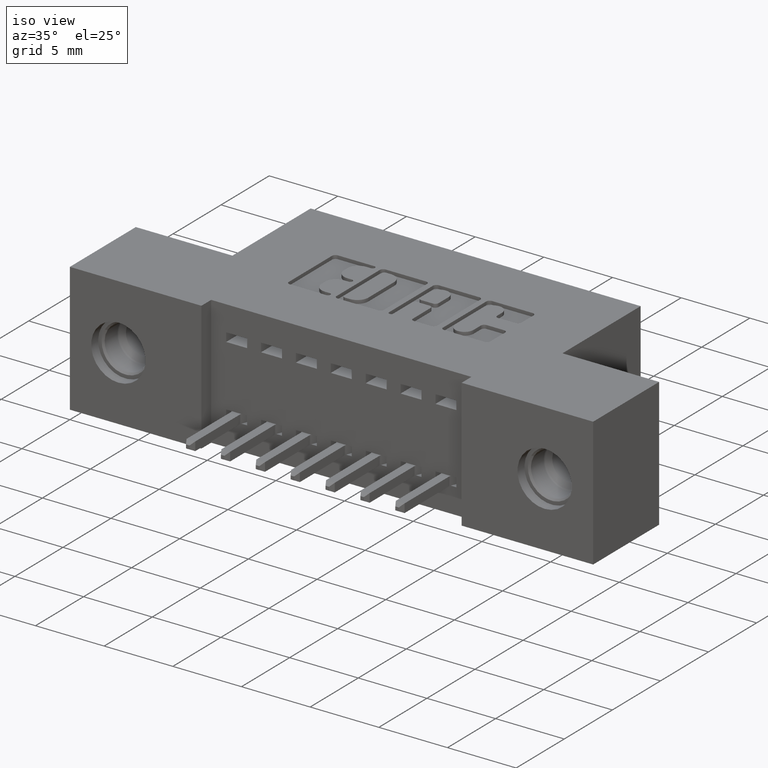
[diagram: clean part render]
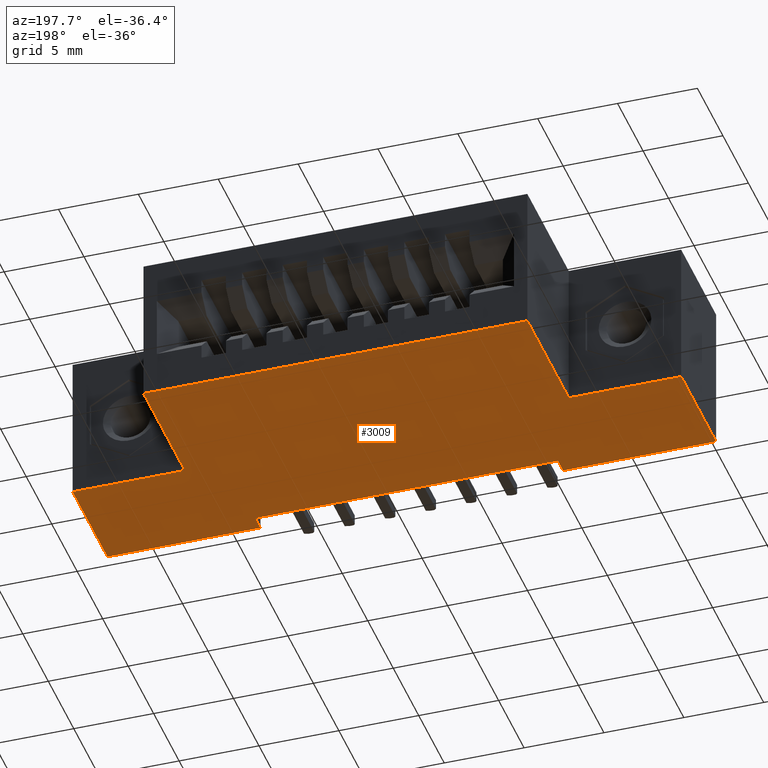
[diagram: tour spotlight — one face highlighted and labeled with its STEP entity id]
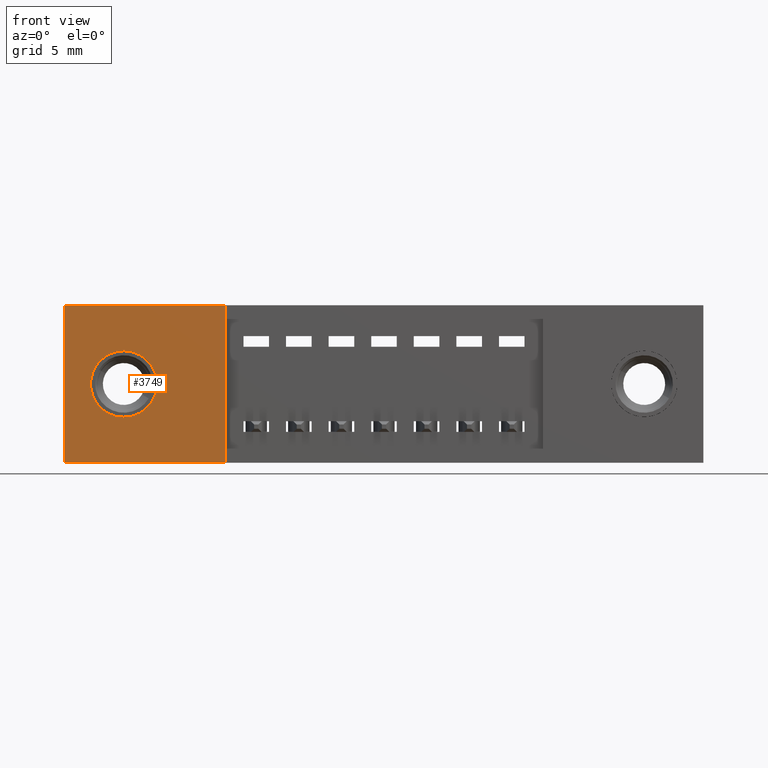
[diagram: tour spotlight — one face highlighted and labeled with its STEP entity id]
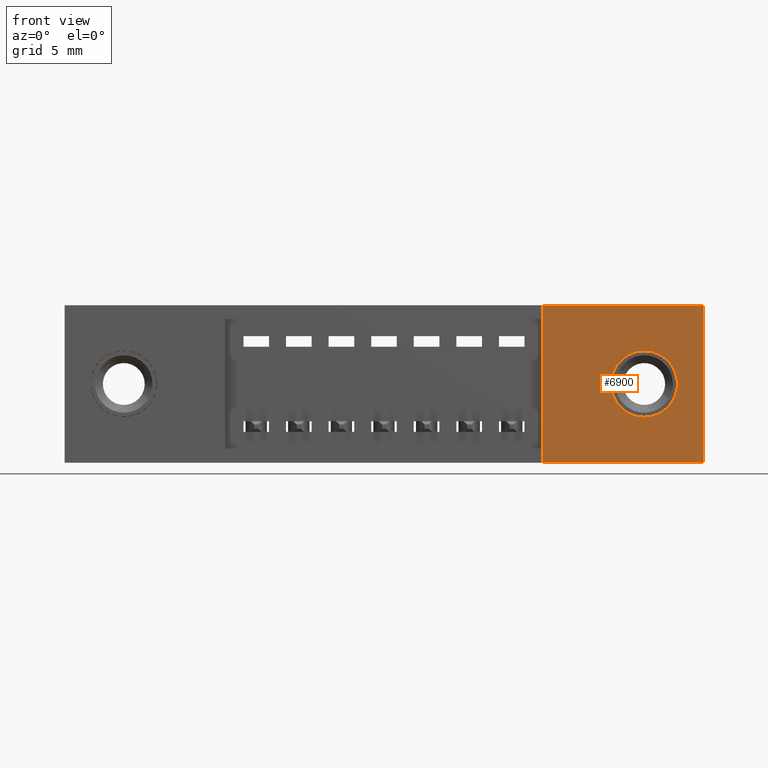
[diagram: tour spotlight — one face highlighted and labeled with its STEP entity id]
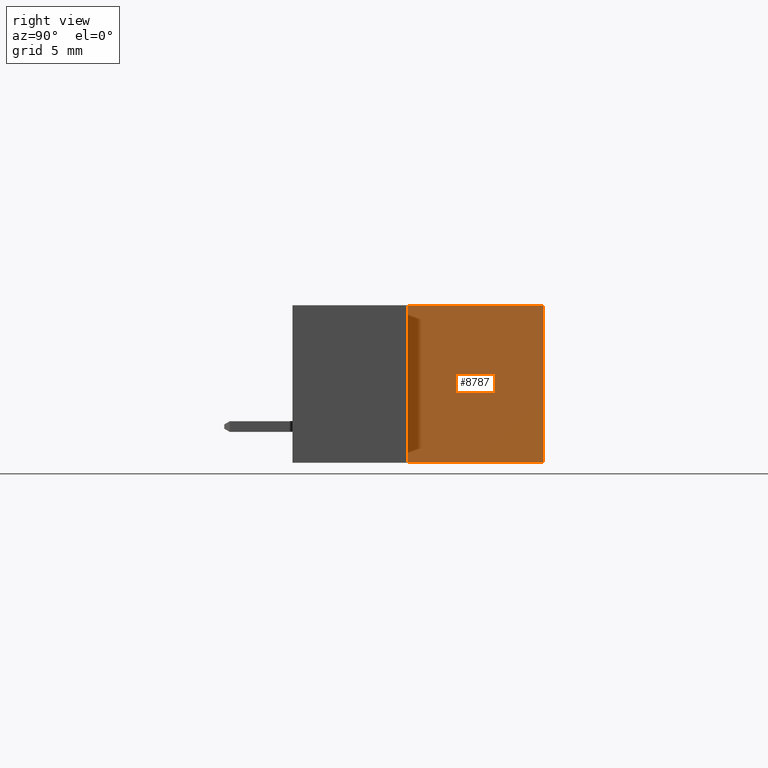
[diagram: tour spotlight — one face highlighted and labeled with its STEP entity id]
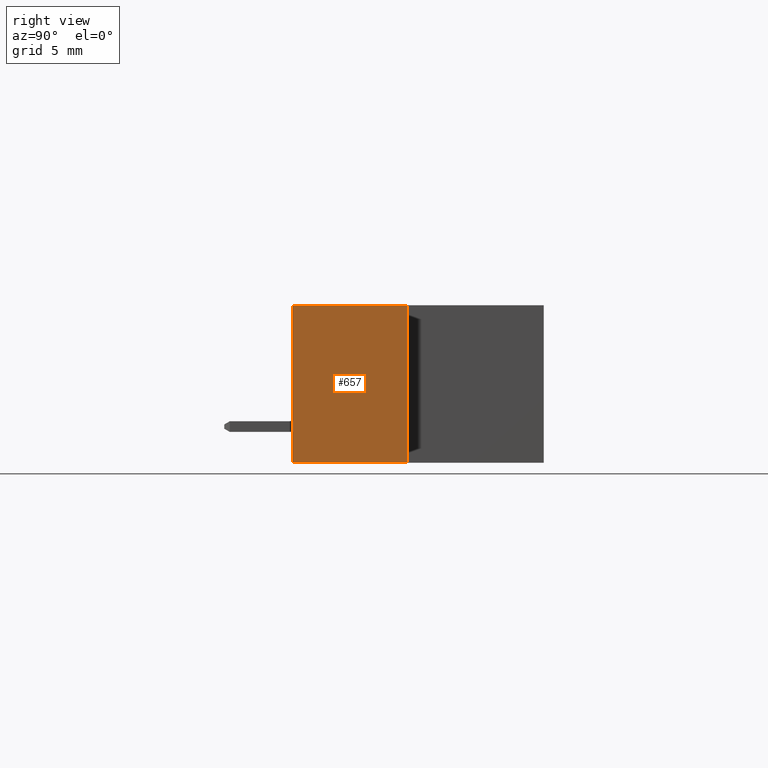
[diagram: tour spotlight — one face highlighted and labeled with its STEP entity id]
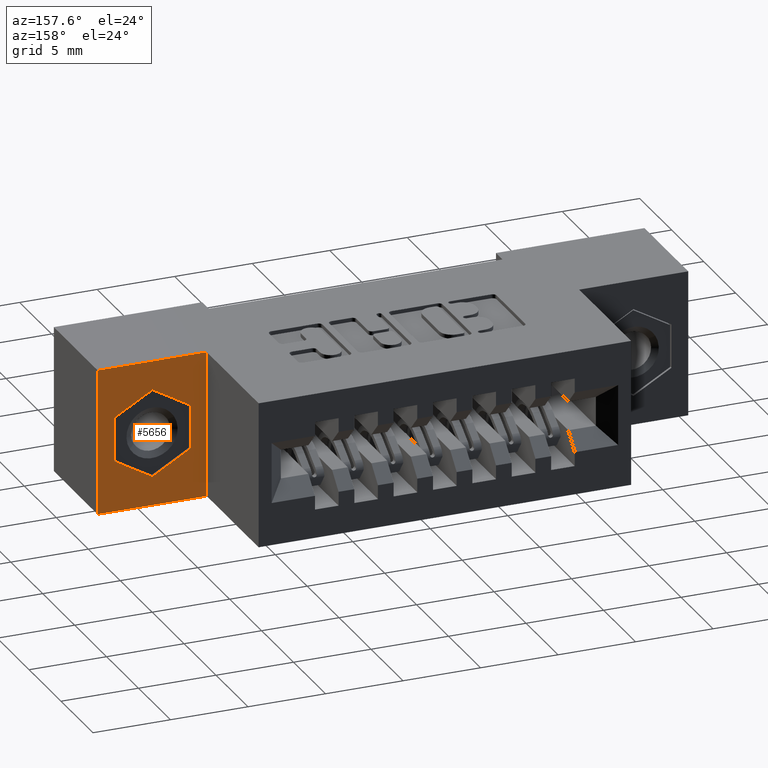
[diagram: tour spotlight — one face highlighted and labeled with its STEP entity id]
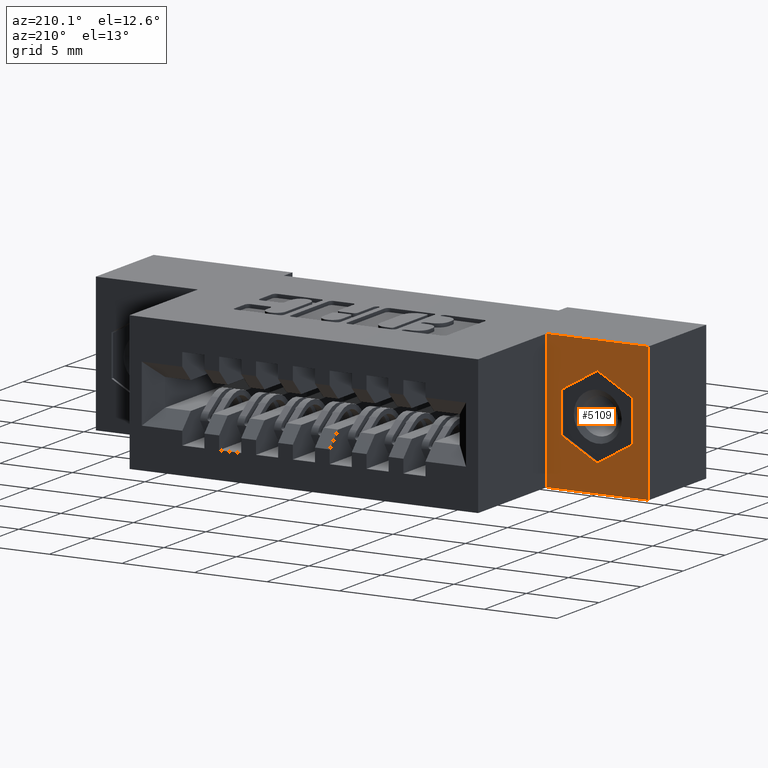
[diagram: tour spotlight — one face highlighted and labeled with its STEP entity id]
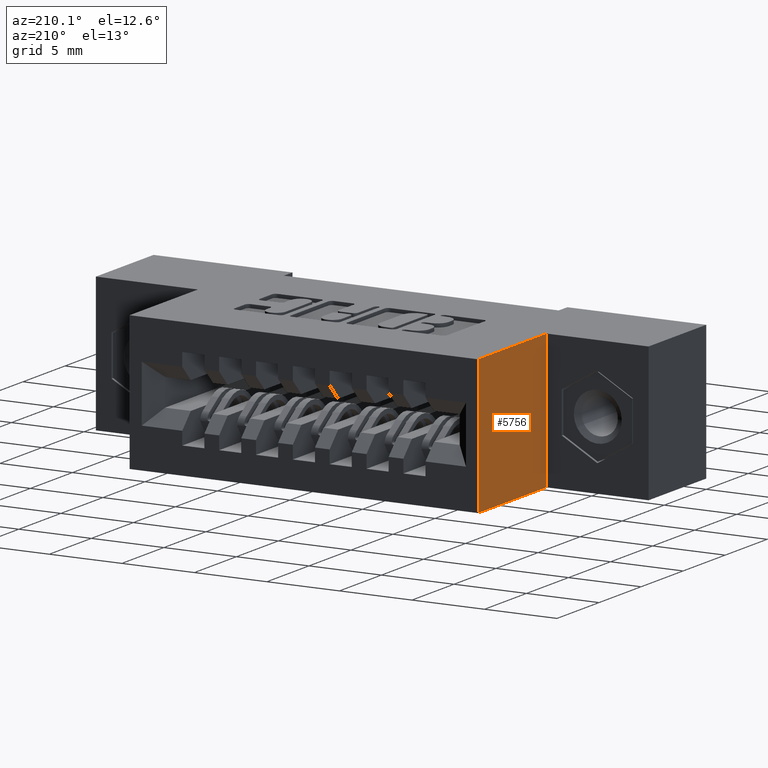
[diagram: tour spotlight — one face highlighted and labeled with its STEP entity id]
A machine part: a face-by-face anatomy tour. The part has 576 B-rep faces; the first image is the clean iso view, then the 8 largest visible faces are spotlighted one at a time (largest first), each with its STEP entity span.

Face 1 — auxiliary view, entity #3009. In plain terms, the highlighted planar face has unit normal (0, 0, 1).
Definition (entity closure, byte-faithful):
#44 = ORIENTED_EDGE ( 'NONE', *, *, #3836, .F. ) ;
#292 = CARTESIAN_POINT ( 'NONE',  ( 0.3770000000000000600, 0.04000000000000000100, -0.3700000000000000000 ) ) ;
#621 = CARTESIAN_POINT ( 'NONE',  ( 0.0000000000000000000, 0.5899999999999999700, -0.3700000000000000000 ) ) ;
#786 = VERTEX_POINT ( 'NONE', #2935 ) ;
#982 = DIRECTION ( 'NONE',  ( -0.0000000000000000000, -1.000000000000000000, -0.0000000000000000000 ) ) ;
#996 = EDGE_LOOP ( 'NONE', ( #4552, #3444, #4946, #8586, #7533, #2884, #8603, #7553, #44, #7005, #3616, #1050 ) ) ;
#1010 = CARTESIAN_POINT ( 'NONE',  ( 1.223000000000000100, 0.2699999999999999600, -0.3700000000000002200 ) ) ;
#1030 = VERTEX_POINT ( 'NONE', #7048 ) ;
#1050 = ORIENTED_EDGE ( 'NONE', *, *, #3458, .T. ) ;
#1169 = PLANE ( 'NONE',  #3211 ) ;
#1281 = EDGE_CURVE ( 'NONE', #1030, #786, #7740, .T. ) ;
#1424 = DIRECTION ( 'NONE',  ( -0.0000000000000000000, -1.000000000000000000, -0.0000000000000000000 ) ) ;
#1428 = VERTEX_POINT ( 'NONE', #2901 ) ;
#1514 = VERTEX_POINT ( 'NONE', #6163 ) ;
#1599 = EDGE_CURVE ( 'NONE', #5223, #1428, #5152, .T. ) ;
#1633 = EDGE_CURVE ( 'NONE', #9439, #9471, #6940, .T. ) ;
#1687 = VECTOR ( 'NONE', #3794, 39.37007874015748100 ) ;
#1828 = VERTEX_POINT ( 'NONE', #7994 ) ;
#1930 = DIRECTION ( 'NONE',  ( -1.000000000000000000, 0.0000000000000000000, -7.396700343856307300E-016 ) ) ;
#1933 = CARTESIAN_POINT ( 'NONE',  ( 0.0000000000000000000, 0.0000000000000000000, -0.3700000000000000000 ) ) ;
#1968 = CARTESIAN_POINT ( 'NONE',  ( 0.0000000000000000000, 0.5899999999999999700, -0.3700000000000000000 ) ) ;
#2275 = DIRECTION ( 'NONE',  ( -0.0000000000000000000, -1.000000000000000000, -0.0000000000000000000 ) ) ;
#2307 = CARTESIAN_POINT ( 'NONE',  ( 0.2770000000000000200, 0.2699999999999999600, -0.3700000000000000000 ) ) ;
#2440 = EDGE_CURVE ( 'NONE', #1514, #9285, #4019, .T. ) ;
#2580 = CARTESIAN_POINT ( 'NONE',  ( 1.500000000000000200, 0.5899999999999999700, -0.3700000000000000000 ) ) ;
#2856 = DIRECTION ( 'NONE',  ( -0.0000000000000000000, 1.000000000000000000, -0.0000000000000000000 ) ) ;
#2884 = ORIENTED_EDGE ( 'NONE', *, *, #1599, .F. ) ;
#2901 = CARTESIAN_POINT ( 'NONE',  ( 0.0000000000000000000, 0.0000000000000000000, -0.3700000000000000000 ) ) ;
#2935 = CARTESIAN_POINT ( 'NONE',  ( 1.123000000000000200, 0.04000000000000000100, -0.3700000000000000000 ) ) ;
#2964 = EDGE_CURVE ( 'NONE', #4211, #1828, #3759, .T. ) ;
#3009 = ADVANCED_FACE ( 'NONE', ( #5127 ), #1169, .F. ) ;
#3127 = CARTESIAN_POINT ( 'NONE',  ( 0.3770000000000000600, 0.0000000000000000000, -0.3700000000000000000 ) ) ;
#3157 = CARTESIAN_POINT ( 'NONE',  ( 0.2770000000000000200, 0.5899999999999999700, -0.3700000000000000000 ) ) ;
#3205 = LINE ( 'NONE', #8176, #3445 ) ;
#3211 = AXIS2_PLACEMENT_3D ( 'NONE', #1968, #3535, #8844 ) ;
#3325 = DIRECTION ( 'NONE',  ( -0.0000000000000000000, -1.000000000000000000, -0.0000000000000000000 ) ) ;
#3353 = VECTOR ( 'NONE', #7645, 39.37007874015748100 ) ;
#3444 = ORIENTED_EDGE ( 'NONE', *, *, #9867, .F. ) ;
#3445 = VECTOR ( 'NONE', #2856, 39.37007874015748100 ) ;
#3449 = CARTESIAN_POINT ( 'NONE',  ( 1.500000000000000200, 0.0000000000000000000, -0.3700000000000000000 ) ) ;
#3458 = EDGE_CURVE ( 'NONE', #9439, #4211, #7132, .T. ) ;
#3535 = DIRECTION ( 'NONE',  ( 0.0000000000000000000, 0.0000000000000000000, 1.000000000000000000 ) ) ;
#3616 = ORIENTED_EDGE ( 'NONE', *, *, #1633, .F. ) ;
#3759 = LINE ( 'NONE', #1933, #5597 ) ;
#3779 = DIRECTION ( 'NONE',  ( -1.000000000000000000, -0.0000000000000000000, -0.0000000000000000000 ) ) ;
#3794 = DIRECTION ( 'NONE',  ( -0.0000000000000000000, 1.000000000000000000, -0.0000000000000000000 ) ) ;
#3836 = EDGE_CURVE ( 'NONE', #7647, #9285, #5819, .T. ) ;
#4019 = LINE ( 'NONE', #2307, #1687 ) ;
#4056 = CARTESIAN_POINT ( 'NONE',  ( 0.3770000000000000600, 0.04000000000000000100, -0.3700000000000000000 ) ) ;
#4079 = EDGE_CURVE ( 'NONE', #1030, #5820, #5698, .T. ) ;
#4211 = VERTEX_POINT ( 'NONE', #3449 ) ;
#4399 = VECTOR ( 'NONE', #2275, 39.37007874015748100 ) ;
#4552 = ORIENTED_EDGE ( 'NONE', *, *, #2964, .T. ) ;
#4659 = VECTOR ( 'NONE', #1930, 39.37007874015748100 ) ;
#4920 = VECTOR ( 'NONE', #1424, 39.37007874015748100 ) ;
#4946 = ORIENTED_EDGE ( 'NONE', *, *, #1281, .F. ) ;
#5127 = FACE_OUTER_BOUND ( 'NONE', #996, .T. ) ;
#5152 = LINE ( 'NONE', #6260, #4920 ) ;
#5223 = VERTEX_POINT ( 'NONE', #9217 ) ;
#5582 = VECTOR ( 'NONE', #3779, 39.37007874015748100 ) ;
#5597 = VECTOR ( 'NONE', #6585, 39.37007874015748100 ) ;
#5698 = LINE ( 'NONE', #4056, #9184 ) ;
#5819 = LINE ( 'NONE', #621, #5582 ) ;
#5820 = VERTEX_POINT ( 'NONE', #3127 ) ;
#5982 = VECTOR ( 'NONE', #7839, 39.37007874015748100 ) ;
#6163 = CARTESIAN_POINT ( 'NONE',  ( 0.2770000000000000200, 0.2699999999999999600, -0.3700000000000000000 ) ) ;
#6184 = LINE ( 'NONE', #6924, #4399 ) ;
#6260 = CARTESIAN_POINT ( 'NONE',  ( 0.0000000000000000000, 0.5899999999999999700, -0.3700000000000000000 ) ) ;
#6330 = DIRECTION ( 'NONE',  ( -1.000000000000000000, -0.0000000000000000000, -0.0000000000000000000 ) ) ;
#6585 = DIRECTION ( 'NONE',  ( -1.000000000000000000, -0.0000000000000000000, -0.0000000000000000000 ) ) ;
#6917 = CARTESIAN_POINT ( 'NONE',  ( 0.0000000000000000000, 0.0000000000000000000, -0.3700000000000000000 ) ) ;
#6924 = CARTESIAN_POINT ( 'NONE',  ( 1.123000000000000200, 0.04000000000000000100, -0.3700000000000000000 ) ) ;
#6940 = LINE ( 'NONE', #7586, #4659 ) ;
#7005 = ORIENTED_EDGE ( 'NONE', *, *, #8353, .F. ) ;
#7048 = CARTESIAN_POINT ( 'NONE',  ( 0.3770000000000000600, 0.04000000000000000100, -0.3700000000000000000 ) ) ;
#7054 = VECTOR ( 'NONE', #6330, 39.37007874015748100 ) ;
#7132 = LINE ( 'NONE', #2580, #9085 ) ;
#7348 = EDGE_CURVE ( 'NONE', #5820, #1428, #9380, .T. ) ;
#7533 = ORIENTED_EDGE ( 'NONE', *, *, #7348, .T. ) ;
#7553 = ORIENTED_EDGE ( 'NONE', *, *, #2440, .T. ) ;
#7586 = CARTESIAN_POINT ( 'NONE',  ( 1.500000000000000200, 0.2699999999999999600, -0.3700000000000000000 ) ) ;
#7645 = DIRECTION ( 'NONE',  ( -1.000000000000000000, -0.0000000000000000000, -0.0000000000000000000 ) ) ;
#7647 = VERTEX_POINT ( 'NONE', #8810 ) ;
#7740 = LINE ( 'NONE', #292, #5982 ) ;
#7839 = DIRECTION ( 'NONE',  ( 1.000000000000000000, 0.0000000000000000000, 0.0000000000000000000 ) ) ;
#7994 = CARTESIAN_POINT ( 'NONE',  ( 1.123000000000000200, 0.0000000000000000000, -0.3700000000000000000 ) ) ;
#8176 = CARTESIAN_POINT ( 'NONE',  ( 1.223000000000000100, 0.2699999999999999600, -0.3700000000000002200 ) ) ;
#8353 = EDGE_CURVE ( 'NONE', #9471, #7647, #3205, .T. ) ;
#8586 = ORIENTED_EDGE ( 'NONE', *, *, #4079, .T. ) ;
#8603 = ORIENTED_EDGE ( 'NONE', *, *, #8716, .F. ) ;
#8674 = CARTESIAN_POINT ( 'NONE',  ( 1.500000000000000200, 0.2699999999999999600, -0.3700000000000000000 ) ) ;
#8716 = EDGE_CURVE ( 'NONE', #1514, #5223, #9002, .T. ) ;
#8810 = CARTESIAN_POINT ( 'NONE',  ( 1.222999999999999900, 0.5899999999999999700, -0.3700000000000000000 ) ) ;
#8844 = DIRECTION ( 'NONE',  ( 1.000000000000000000, 0.0000000000000000000, -0.0000000000000000000 ) ) ;
#9002 = LINE ( 'NONE', #9287, #7054 ) ;
#9085 = VECTOR ( 'NONE', #982, 39.37007874015748100 ) ;
#9184 = VECTOR ( 'NONE', #3325, 39.37007874015748100 ) ;
#9217 = CARTESIAN_POINT ( 'NONE',  ( -4.695363739110452100E-017, 0.2699999999999999600, -0.3700000000000000000 ) ) ;
#9285 = VERTEX_POINT ( 'NONE', #3157 ) ;
#9287 = CARTESIAN_POINT ( 'NONE',  ( -4.695363739110452100E-017, 0.2699999999999999600, -0.3700000000000000000 ) ) ;
#9380 = LINE ( 'NONE', #6917, #3353 ) ;
#9439 = VERTEX_POINT ( 'NONE', #8674 ) ;
#9471 = VERTEX_POINT ( 'NONE', #1010 ) ;
#9867 = EDGE_CURVE ( 'NONE', #786, #1828, #6184, .T. ) ;

Face 2 — front view, entity #3749. In plain terms, the highlighted planar face has unit normal (0, -1, 0).
Definition (entity closure, byte-faithful):
#499 = AXIS2_PLACEMENT_3D ( 'NONE', #1311, #3683, #8985 ) ;
#552 = FACE_OUTER_BOUND ( 'NONE', #3331, .T. ) ;
#680 = ORIENTED_EDGE ( 'NONE', *, *, #4852, .T. ) ;
#890 = EDGE_CURVE ( 'NONE', #6743, #4610, #7295, .T. ) ;
#963 = AXIS2_PLACEMENT_3D ( 'NONE', #6624, #1972, #7365 ) ;
#1311 = CARTESIAN_POINT ( 'NONE',  ( 0.0000000000000000000, 0.0000000000000000000, -0.3700000000000000000 ) ) ;
#1351 = CARTESIAN_POINT ( 'NONE',  ( 0.1390000000000000400, 0.0000000000000000000, -0.2630000000000000100 ) ) ;
#1428 = VERTEX_POINT ( 'NONE', #2901 ) ;
#1443 = LINE ( 'NONE', #6291, #1692 ) ;
#1531 = VECTOR ( 'NONE', #5951, 39.37007874015748100 ) ;
#1692 = VECTOR ( 'NONE', #4793, 39.37007874015748100 ) ;
#1737 = ORIENTED_EDGE ( 'NONE', *, *, #9342, .F. ) ;
#1951 = VERTEX_POINT ( 'NONE', #9583 ) ;
#1972 = DIRECTION ( 'NONE',  ( 0.0000000000000000000, 1.000000000000000000, 0.0000000000000000000 ) ) ;
#2028 = VERTEX_POINT ( 'NONE', #1351 ) ;
#2054 = ORIENTED_EDGE ( 'NONE', *, *, #9113, .T. ) ;
#2358 = AXIS2_PLACEMENT_3D ( 'NONE', #3684, #8987, #4494 ) ;
#2428 = ORIENTED_EDGE ( 'NONE', *, *, #4930, .F. ) ;
#2901 = CARTESIAN_POINT ( 'NONE',  ( 0.0000000000000000000, 0.0000000000000000000, -0.3700000000000000000 ) ) ;
#3016 = CIRCLE ( 'NONE', #963, 0.07800000000000001400 ) ;
#3127 = CARTESIAN_POINT ( 'NONE',  ( 0.3770000000000000600, 0.0000000000000000000, -0.3700000000000000000 ) ) ;
#3214 = VECTOR ( 'NONE', #5126, 39.37007874015748100 ) ;
#3331 = EDGE_LOOP ( 'NONE', ( #2428, #9210, #1737, #7914 ) ) ;
#3353 = VECTOR ( 'NONE', #7645, 39.37007874015748100 ) ;
#3507 = EDGE_LOOP ( 'NONE', ( #2054, #680 ) ) ;
#3618 = LINE ( 'NONE', #4409, #1531 ) ;
#3683 = DIRECTION ( 'NONE',  ( 0.0000000000000000000, -1.000000000000000000, 0.0000000000000000000 ) ) ;
#3684 = CARTESIAN_POINT ( 'NONE',  ( 0.1390000000000000100, 0.0000000000000000000, -0.1850000000000000000 ) ) ;
#3749 = ADVANCED_FACE ( 'NONE', ( #4501, #552 ), #5994, .T. ) ;
#4409 = CARTESIAN_POINT ( 'NONE',  ( 0.3770000000000000600, 0.0000000000000000000, -0.3700000000000000000 ) ) ;
#4494 = DIRECTION ( 'NONE',  ( 0.0000000000000000000, 0.0000000000000000000, 1.000000000000000000 ) ) ;
#4501 = FACE_BOUND ( 'NONE', #3507, .T. ) ;
#4509 = CARTESIAN_POINT ( 'NONE',  ( 0.0000000000000000000, 0.0000000000000000000, 0.0000000000000000000 ) ) ;
#4610 = VERTEX_POINT ( 'NONE', #4755 ) ;
#4755 = CARTESIAN_POINT ( 'NONE',  ( 0.3769999999999998900, 0.0000000000000000000, 0.0000000000000000000 ) ) ;
#4793 = DIRECTION ( 'NONE',  ( -0.0000000000000000000, -0.0000000000000000000, 1.000000000000000000 ) ) ;
#4852 = EDGE_CURVE ( 'NONE', #2028, #1951, #3016, .T. ) ;
#4930 = EDGE_CURVE ( 'NONE', #4610, #5820, #3618, .T. ) ;
#5126 = DIRECTION ( 'NONE',  ( 1.000000000000000000, 0.0000000000000000000, 0.0000000000000000000 ) ) ;
#5244 = CARTESIAN_POINT ( 'NONE',  ( 0.0000000000000000000, 0.0000000000000000000, 0.0000000000000000000 ) ) ;
#5489 = CIRCLE ( 'NONE', #2358, 0.07800000000000001400 ) ;
#5820 = VERTEX_POINT ( 'NONE', #3127 ) ;
#5951 = DIRECTION ( 'NONE',  ( -0.0000000000000000000, -0.0000000000000000000, -1.000000000000000000 ) ) ;
#5994 = PLANE ( 'NONE',  #499 ) ;
#6291 = CARTESIAN_POINT ( 'NONE',  ( 0.0000000000000000000, 0.0000000000000000000, 0.0000000000000000000 ) ) ;
#6624 = CARTESIAN_POINT ( 'NONE',  ( 0.1390000000000000100, 0.0000000000000000000, -0.1850000000000000000 ) ) ;
#6743 = VERTEX_POINT ( 'NONE', #5244 ) ;
#6917 = CARTESIAN_POINT ( 'NONE',  ( 0.0000000000000000000, 0.0000000000000000000, -0.3700000000000000000 ) ) ;
#7295 = LINE ( 'NONE', #4509, #3214 ) ;
#7348 = EDGE_CURVE ( 'NONE', #5820, #1428, #9380, .T. ) ;
#7365 = DIRECTION ( 'NONE',  ( 0.0000000000000000000, 0.0000000000000000000, 1.000000000000000000 ) ) ;
#7645 = DIRECTION ( 'NONE',  ( -1.000000000000000000, -0.0000000000000000000, -0.0000000000000000000 ) ) ;
#7914 = ORIENTED_EDGE ( 'NONE', *, *, #7348, .F. ) ;
#8985 = DIRECTION ( 'NONE',  ( 0.0000000000000000000, -0.0000000000000000000, -1.000000000000000000 ) ) ;
#8987 = DIRECTION ( 'NONE',  ( 0.0000000000000000000, 1.000000000000000000, 0.0000000000000000000 ) ) ;
#9113 = EDGE_CURVE ( 'NONE', #1951, #2028, #5489, .T. ) ;
#9210 = ORIENTED_EDGE ( 'NONE', *, *, #890, .F. ) ;
#9342 = EDGE_CURVE ( 'NONE', #1428, #6743, #1443, .T. ) ;
#9380 = LINE ( 'NONE', #6917, #3353 ) ;
#9583 = CARTESIAN_POINT ( 'NONE',  ( 0.1390000000000000100, 0.0000000000000000000, -0.1070000000000000000 ) ) ;

Face 3 — front view, entity #6900. In plain terms, the highlighted planar face has unit normal (0, -1, 0).
Definition (entity closure, byte-faithful):
#63 = VERTEX_POINT ( 'NONE', #9103 ) ;
#230 = CARTESIAN_POINT ( 'NONE',  ( 1.500000000000000200, 0.0000000000000000000, 0.0000000000000000000 ) ) ;
#565 = CARTESIAN_POINT ( 'NONE',  ( 1.123000000000000200, 0.0000000000000000000, -1.895600338963814900E-033 ) ) ;
#644 = LINE ( 'NONE', #3091, #2510 ) ;
#704 = DIRECTION ( 'NONE',  ( 0.0000000000000000000, -0.0000000000000000000, -1.000000000000000000 ) ) ;
#1363 = LINE ( 'NONE', #1897, #5536 ) ;
#1446 = EDGE_LOOP ( 'NONE', ( #2843, #2915 ) ) ;
#1733 = VERTEX_POINT ( 'NONE', #565 ) ;
#1828 = VERTEX_POINT ( 'NONE', #7994 ) ;
#1897 = CARTESIAN_POINT ( 'NONE',  ( 1.123000000000000200, 0.0000000000000000000, -0.3700000000000000000 ) ) ;
#1933 = CARTESIAN_POINT ( 'NONE',  ( 0.0000000000000000000, 0.0000000000000000000, -0.3700000000000000000 ) ) ;
#2110 = EDGE_CURVE ( 'NONE', #4924, #63, #2832, .T. ) ;
#2188 = ORIENTED_EDGE ( 'NONE', *, *, #5771, .F. ) ;
#2335 = ORIENTED_EDGE ( 'NONE', *, *, #5426, .F. ) ;
#2510 = VECTOR ( 'NONE', #3855, 39.37007874015748100 ) ;
#2600 = EDGE_CURVE ( 'NONE', #63, #4924, #6429, .T. ) ;
#2619 = ORIENTED_EDGE ( 'NONE', *, *, #2964, .F. ) ;
#2707 = DIRECTION ( 'NONE',  ( 0.0000000000000000000, 0.0000000000000000000, 1.000000000000000000 ) ) ;
#2760 = AXIS2_PLACEMENT_3D ( 'NONE', #2912, #8103, #7838 ) ;
#2766 = ORIENTED_EDGE ( 'NONE', *, *, #6528, .F. ) ;
#2832 = CIRCLE ( 'NONE', #2760, 0.07800000000000009700 ) ;
#2843 = ORIENTED_EDGE ( 'NONE', *, *, #2600, .T. ) ;
#2912 = CARTESIAN_POINT ( 'NONE',  ( 1.361000000000000000, 0.0000000000000000000, -0.1850000000000001400 ) ) ;
#2915 = ORIENTED_EDGE ( 'NONE', *, *, #2110, .T. ) ;
#2964 = EDGE_CURVE ( 'NONE', #4211, #1828, #3759, .T. ) ;
#3091 = CARTESIAN_POINT ( 'NONE',  ( 0.0000000000000000000, 0.0000000000000000000, 0.0000000000000000000 ) ) ;
#3378 = VECTOR ( 'NONE', #8003, 39.37007874015748100 ) ;
#3404 = AXIS2_PLACEMENT_3D ( 'NONE', #9094, #9011, #8996 ) ;
#3449 = CARTESIAN_POINT ( 'NONE',  ( 1.500000000000000200, 0.0000000000000000000, -0.3700000000000000000 ) ) ;
#3759 = LINE ( 'NONE', #1933, #5597 ) ;
#3855 = DIRECTION ( 'NONE',  ( 1.000000000000000000, 0.0000000000000000000, 0.0000000000000000000 ) ) ;
#4085 = FACE_BOUND ( 'NONE', #1446, .T. ) ;
#4211 = VERTEX_POINT ( 'NONE', #3449 ) ;
#4242 = VERTEX_POINT ( 'NONE', #9530 ) ;
#4633 = CARTESIAN_POINT ( 'NONE',  ( 0.0000000000000000000, 0.0000000000000000000, -0.3700000000000000000 ) ) ;
#4924 = VERTEX_POINT ( 'NONE', #9640 ) ;
#5403 = DIRECTION ( 'NONE',  ( 0.0000000000000000000, -1.000000000000000000, 0.0000000000000000000 ) ) ;
#5426 = EDGE_CURVE ( 'NONE', #4242, #4211, #5437, .T. ) ;
#5437 = LINE ( 'NONE', #230, #3378 ) ;
#5536 = VECTOR ( 'NONE', #2707, 39.37007874015748100 ) ;
#5597 = VECTOR ( 'NONE', #6585, 39.37007874015748100 ) ;
#5771 = EDGE_CURVE ( 'NONE', #1733, #4242, #644, .T. ) ;
#6429 = CIRCLE ( 'NONE', #3404, 0.07800000000000009700 ) ;
#6510 = AXIS2_PLACEMENT_3D ( 'NONE', #4633, #5403, #704 ) ;
#6528 = EDGE_CURVE ( 'NONE', #1828, #1733, #1363, .T. ) ;
#6585 = DIRECTION ( 'NONE',  ( -1.000000000000000000, -0.0000000000000000000, -0.0000000000000000000 ) ) ;
#6900 = ADVANCED_FACE ( 'NONE', ( #4085, #8354 ), #9126, .T. ) ;
#7545 = EDGE_LOOP ( 'NONE', ( #2766, #2619, #2335, #2188 ) ) ;
#7838 = DIRECTION ( 'NONE',  ( 0.0000000000000000000, 0.0000000000000000000, -1.000000000000000000 ) ) ;
#7994 = CARTESIAN_POINT ( 'NONE',  ( 1.123000000000000200, 0.0000000000000000000, -0.3700000000000000000 ) ) ;
#8003 = DIRECTION ( 'NONE',  ( 0.0000000000000000000, 0.0000000000000000000, -1.000000000000000000 ) ) ;
#8103 = DIRECTION ( 'NONE',  ( 0.0000000000000000000, 1.000000000000000000, -0.0000000000000000000 ) ) ;
#8354 = FACE_OUTER_BOUND ( 'NONE', #7545, .T. ) ;
#8996 = DIRECTION ( 'NONE',  ( 0.0000000000000000000, 0.0000000000000000000, -1.000000000000000000 ) ) ;
#9011 = DIRECTION ( 'NONE',  ( 0.0000000000000000000, 1.000000000000000000, -0.0000000000000000000 ) ) ;
#9094 = CARTESIAN_POINT ( 'NONE',  ( 1.361000000000000000, 0.0000000000000000000, -0.1850000000000001400 ) ) ;
#9103 = CARTESIAN_POINT ( 'NONE',  ( 1.361000000000000000, 0.0000000000000000000, -0.1070000000000000700 ) ) ;
#9126 = PLANE ( 'NONE',  #6510 ) ;
#9530 = CARTESIAN_POINT ( 'NONE',  ( 1.500000000000000200, 0.0000000000000000000, 0.0000000000000000000 ) ) ;
#9640 = CARTESIAN_POINT ( 'NONE',  ( 1.361000000000000000, 0.0000000000000000000, -0.2630000000000002300 ) ) ;

Face 4 — right view, entity #8787. In plain terms, the highlighted planar face has unit normal (-1, 0, 0).
Definition (entity closure, byte-faithful):
#536 = LINE ( 'NONE', #8605, #1039 ) ;
#723 = ORIENTED_EDGE ( 'NONE', *, *, #5743, .T. ) ;
#1010 = CARTESIAN_POINT ( 'NONE',  ( 1.223000000000000100, 0.2699999999999999600, -0.3700000000000002200 ) ) ;
#1039 = VECTOR ( 'NONE', #4050, 39.37007874015748100 ) ;
#1253 = CARTESIAN_POINT ( 'NONE',  ( 1.223000000000000100, 0.2699999999999999600, -1.328129453675304600E-016 ) ) ;
#2458 = FACE_OUTER_BOUND ( 'NONE', #4867, .T. ) ;
#2856 = DIRECTION ( 'NONE',  ( -0.0000000000000000000, 1.000000000000000000, -0.0000000000000000000 ) ) ;
#3205 = LINE ( 'NONE', #8176, #3445 ) ;
#3339 = CARTESIAN_POINT ( 'NONE',  ( 1.223000000000000100, 0.2699999999999999600, -0.3700000000000002200 ) ) ;
#3409 = ORIENTED_EDGE ( 'NONE', *, *, #4649, .F. ) ;
#3445 = VECTOR ( 'NONE', #2856, 39.37007874015748100 ) ;
#3603 = AXIS2_PLACEMENT_3D ( 'NONE', #3339, #8659, #4110 ) ;
#3783 = CARTESIAN_POINT ( 'NONE',  ( 1.223000000000000100, 0.5899999999999999700, -1.328129453675304600E-016 ) ) ;
#4050 = DIRECTION ( 'NONE',  ( 3.691686477924679000E-016, 0.0000000000000000000, 1.000000000000000000 ) ) ;
#4110 = DIRECTION ( 'NONE',  ( 3.691686477924679000E-016, 0.0000000000000000000, 1.000000000000000000 ) ) ;
#4649 = EDGE_CURVE ( 'NONE', #9471, #7462, #536, .T. ) ;
#4774 = CARTESIAN_POINT ( 'NONE',  ( 1.223000000000000100, 0.2699999999999999600, -1.328129453675304600E-016 ) ) ;
#4867 = EDGE_LOOP ( 'NONE', ( #723, #6087, #3409, #7061 ) ) ;
#5743 = EDGE_CURVE ( 'NONE', #7647, #7830, #7104, .T. ) ;
#6087 = ORIENTED_EDGE ( 'NONE', *, *, #7701, .F. ) ;
#6354 = VECTOR ( 'NONE', #6709, 39.37007874015748100 ) ;
#6606 = LINE ( 'NONE', #1253, #6354 ) ;
#6709 = DIRECTION ( 'NONE',  ( -0.0000000000000000000, 1.000000000000000000, -0.0000000000000000000 ) ) ;
#6907 = CARTESIAN_POINT ( 'NONE',  ( 1.223000000000000100, 0.5899999999999999700, -0.3700000000000002200 ) ) ;
#7061 = ORIENTED_EDGE ( 'NONE', *, *, #8353, .T. ) ;
#7104 = LINE ( 'NONE', #6907, #8607 ) ;
#7169 = PLANE ( 'NONE',  #3603 ) ;
#7462 = VERTEX_POINT ( 'NONE', #4774 ) ;
#7633 = DIRECTION ( 'NONE',  ( 3.691686477924679000E-016, 0.0000000000000000000, 1.000000000000000000 ) ) ;
#7647 = VERTEX_POINT ( 'NONE', #8810 ) ;
#7701 = EDGE_CURVE ( 'NONE', #7462, #7830, #6606, .T. ) ;
#7830 = VERTEX_POINT ( 'NONE', #3783 ) ;
#8176 = CARTESIAN_POINT ( 'NONE',  ( 1.223000000000000100, 0.2699999999999999600, -0.3700000000000002200 ) ) ;
#8353 = EDGE_CURVE ( 'NONE', #9471, #7647, #3205, .T. ) ;
#8605 = CARTESIAN_POINT ( 'NONE',  ( 1.223000000000000100, 0.2699999999999999600, -0.3700000000000002200 ) ) ;
#8607 = VECTOR ( 'NONE', #7633, 39.37007874015748100 ) ;
#8659 = DIRECTION ( 'NONE',  ( -1.000000000000000000, 0.0000000000000000000, 3.691686477924679000E-016 ) ) ;
#8787 = ADVANCED_FACE ( 'NONE', ( #2458 ), #7169, .F. ) ;
#8810 = CARTESIAN_POINT ( 'NONE',  ( 1.222999999999999900, 0.5899999999999999700, -0.3700000000000000000 ) ) ;
#9471 = VERTEX_POINT ( 'NONE', #1010 ) ;

Face 5 — right view, entity #657. In plain terms, the highlighted planar face has unit normal (-1, 0, 0).
Definition (entity closure, byte-faithful):
#230 = CARTESIAN_POINT ( 'NONE',  ( 1.500000000000000200, 0.0000000000000000000, 0.0000000000000000000 ) ) ;
#424 = CARTESIAN_POINT ( 'NONE',  ( 1.500000000000000200, 0.5899999999999999700, 0.0000000000000000000 ) ) ;
#657 = ADVANCED_FACE ( 'NONE', ( #1727 ), #4247, .F. ) ;
#904 = EDGE_CURVE ( 'NONE', #4338, #4242, #5276, .T. ) ;
#982 = DIRECTION ( 'NONE',  ( -0.0000000000000000000, -1.000000000000000000, -0.0000000000000000000 ) ) ;
#1098 = EDGE_CURVE ( 'NONE', #4338, #9439, #1469, .T. ) ;
#1469 = LINE ( 'NONE', #6409, #9360 ) ;
#1727 = FACE_OUTER_BOUND ( 'NONE', #3403, .T. ) ;
#2580 = CARTESIAN_POINT ( 'NONE',  ( 1.500000000000000200, 0.5899999999999999700, -0.3700000000000000000 ) ) ;
#3219 = ORIENTED_EDGE ( 'NONE', *, *, #5426, .T. ) ;
#3378 = VECTOR ( 'NONE', #8003, 39.37007874015748100 ) ;
#3403 = EDGE_LOOP ( 'NONE', ( #7964, #8880, #3219, #7648 ) ) ;
#3449 = CARTESIAN_POINT ( 'NONE',  ( 1.500000000000000200, 0.0000000000000000000, -0.3700000000000000000 ) ) ;
#3458 = EDGE_CURVE ( 'NONE', #9439, #4211, #7132, .T. ) ;
#4211 = VERTEX_POINT ( 'NONE', #3449 ) ;
#4242 = VERTEX_POINT ( 'NONE', #9530 ) ;
#4247 = PLANE ( 'NONE',  #7793 ) ;
#4338 = VERTEX_POINT ( 'NONE', #5130 ) ;
#5130 = CARTESIAN_POINT ( 'NONE',  ( 1.500000000000000200, 0.2699999999999999600, 0.0000000000000000000 ) ) ;
#5276 = LINE ( 'NONE', #424, #9019 ) ;
#5426 = EDGE_CURVE ( 'NONE', #4242, #4211, #5437, .T. ) ;
#5437 = LINE ( 'NONE', #230, #3378 ) ;
#6047 = DIRECTION ( 'NONE',  ( 0.0000000000000000000, 0.0000000000000000000, 1.000000000000000000 ) ) ;
#6409 = CARTESIAN_POINT ( 'NONE',  ( 1.500000000000000200, 0.2699999999999999600, -0.3700000000000000000 ) ) ;
#7132 = LINE ( 'NONE', #2580, #9085 ) ;
#7648 = ORIENTED_EDGE ( 'NONE', *, *, #3458, .F. ) ;
#7793 = AXIS2_PLACEMENT_3D ( 'NONE', #8536, #9281, #6047 ) ;
#7964 = ORIENTED_EDGE ( 'NONE', *, *, #1098, .F. ) ;
#8003 = DIRECTION ( 'NONE',  ( 0.0000000000000000000, 0.0000000000000000000, -1.000000000000000000 ) ) ;
#8536 = CARTESIAN_POINT ( 'NONE',  ( 1.500000000000000200, 0.5899999999999999700, 0.0000000000000000000 ) ) ;
#8669 = DIRECTION ( 'NONE',  ( -0.0000000000000000000, -1.000000000000000000, -0.0000000000000000000 ) ) ;
#8674 = CARTESIAN_POINT ( 'NONE',  ( 1.500000000000000200, 0.2699999999999999600, -0.3700000000000000000 ) ) ;
#8880 = ORIENTED_EDGE ( 'NONE', *, *, #904, .T. ) ;
#9019 = VECTOR ( 'NONE', #8669, 39.37007874015748100 ) ;
#9085 = VECTOR ( 'NONE', #982, 39.37007874015748100 ) ;
#9233 = DIRECTION ( 'NONE',  ( -0.0000000000000000000, -0.0000000000000000000, -1.000000000000000000 ) ) ;
#9281 = DIRECTION ( 'NONE',  ( -1.000000000000000000, 0.0000000000000000000, 0.0000000000000000000 ) ) ;
#9360 = VECTOR ( 'NONE', #9233, 39.37007874015748100 ) ;
#9439 = VERTEX_POINT ( 'NONE', #8674 ) ;
#9530 = CARTESIAN_POINT ( 'NONE',  ( 1.500000000000000200, 0.0000000000000000000, 0.0000000000000000000 ) ) ;

Face 6 — auxiliary view, entity #5656. In plain terms, the highlighted planar face has unit normal (0, 1, 0).
Definition (entity closure, byte-faithful):
#9 = VECTOR ( 'NONE', #4256, 39.37007874015748900 ) ;
#39 = CARTESIAN_POINT ( 'NONE',  ( 1.361000000000000000, 0.2699999999999999600, -0.2964286019535978800 ) ) ;
#67 = EDGE_CURVE ( 'NONE', #5917, #1999, #4185, .T. ) ;
#182 = CARTESIAN_POINT ( 'NONE',  ( 1.264499999999999500, 0.2699999999999999600, -0.1292856990232012800 ) ) ;
#306 = ORIENTED_EDGE ( 'NONE', *, *, #1833, .T. ) ;
#389 = DIRECTION ( 'NONE',  ( 0.8660254037844384900, -0.0000000000000000000, -0.5000000000000001100 ) ) ;
#536 = LINE ( 'NONE', #8605, #1039 ) ;
#537 = ORIENTED_EDGE ( 'NONE', *, *, #4649, .T. ) ;
#1010 = CARTESIAN_POINT ( 'NONE',  ( 1.223000000000000100, 0.2699999999999999600, -0.3700000000000002200 ) ) ;
#1039 = VECTOR ( 'NONE', #4050, 39.37007874015748100 ) ;
#1098 = EDGE_CURVE ( 'NONE', #4338, #9439, #1469, .T. ) ;
#1148 = ORIENTED_EDGE ( 'NONE', *, *, #4099, .F. ) ;
#1177 = EDGE_CURVE ( 'NONE', #7630, #5917, #8903, .T. ) ;
#1240 = ORIENTED_EDGE ( 'NONE', *, *, #1177, .F. ) ;
#1279 = VECTOR ( 'NONE', #4899, 39.37007874015748100 ) ;
#1326 = LINE ( 'NONE', #4823, #9229 ) ;
#1469 = LINE ( 'NONE', #6409, #9360 ) ;
#1600 = VERTEX_POINT ( 'NONE', #182 ) ;
#1633 = EDGE_CURVE ( 'NONE', #9439, #9471, #6940, .T. ) ;
#1833 = EDGE_CURVE ( 'NONE', #7462, #4338, #2954, .T. ) ;
#1856 = EDGE_LOOP ( 'NONE', ( #3877, #3876, #7304, #1240, #4523, #1148 ) ) ;
#1930 = DIRECTION ( 'NONE',  ( -1.000000000000000000, 0.0000000000000000000, -7.396700343856307300E-016 ) ) ;
#1999 = VERTEX_POINT ( 'NONE', #39 ) ;
#2538 = VERTEX_POINT ( 'NONE', #9513 ) ;
#2735 = CARTESIAN_POINT ( 'NONE',  ( 1.457500000000000000, 0.2699999999999999600, -0.1292856990232013100 ) ) ;
#2806 = EDGE_CURVE ( 'NONE', #1999, #2538, #7483, .T. ) ;
#2889 = ORIENTED_EDGE ( 'NONE', *, *, #1633, .T. ) ;
#2954 = LINE ( 'NONE', #7543, #6816 ) ;
#2998 = DIRECTION ( 'NONE',  ( -0.8660254037844398200, -0.0000000000000000000, 0.4999999999999979500 ) ) ;
#3174 = CARTESIAN_POINT ( 'NONE',  ( 1.264499999999999500, 0.2699999999999999600, -0.2407143009767990200 ) ) ;
#3196 = DIRECTION ( 'NONE',  ( -0.0000000000000000000, -0.0000000000000000000, 1.000000000000000000 ) ) ;
#3385 = LINE ( 'NONE', #9370, #1279 ) ;
#3876 = ORIENTED_EDGE ( 'NONE', *, *, #2806, .F. ) ;
#3877 = ORIENTED_EDGE ( 'NONE', *, *, #8680, .F. ) ;
#3924 = VECTOR ( 'NONE', #389, 39.37007874015748900 ) ;
#3939 = DIRECTION ( 'NONE',  ( -0.0000000000000000000, -0.0000000000000000000, -1.000000000000000000 ) ) ;
#4050 = DIRECTION ( 'NONE',  ( 3.691686477924679000E-016, 0.0000000000000000000, 1.000000000000000000 ) ) ;
#4065 = AXIS2_PLACEMENT_3D ( 'NONE', #7541, #4526, #9745 ) ;
#4099 = EDGE_CURVE ( 'NONE', #1600, #7969, #3385, .T. ) ;
#4171 = ORIENTED_EDGE ( 'NONE', *, *, #1098, .T. ) ;
#4185 = LINE ( 'NONE', #8643, #9 ) ;
#4256 = DIRECTION ( 'NONE',  ( -0.8660254037844386000, -0.0000000000000000000, -0.5000000000000000000 ) ) ;
#4318 = CARTESIAN_POINT ( 'NONE',  ( 1.457500000000000000, 0.2699999999999999600, -0.1292856990232013100 ) ) ;
#4338 = VERTEX_POINT ( 'NONE', #5130 ) ;
#4523 = ORIENTED_EDGE ( 'NONE', *, *, #8268, .F. ) ;
#4526 = DIRECTION ( 'NONE',  ( 0.0000000000000000000, 1.000000000000000000, -0.0000000000000000000 ) ) ;
#4649 = EDGE_CURVE ( 'NONE', #9471, #7462, #536, .T. ) ;
#4659 = VECTOR ( 'NONE', #1930, 39.37007874015748100 ) ;
#4774 = CARTESIAN_POINT ( 'NONE',  ( 1.223000000000000100, 0.2699999999999999600, -1.328129453675304600E-016 ) ) ;
#4823 = CARTESIAN_POINT ( 'NONE',  ( 1.264499999999999500, 0.2699999999999999600, -0.1292856990232012800 ) ) ;
#4899 = DIRECTION ( 'NONE',  ( 0.8660254037844398200, -0.0000000000000000000, 0.4999999999999977200 ) ) ;
#4929 = VECTOR ( 'NONE', #3939, 39.37007874015748100 ) ;
#4970 = CARTESIAN_POINT ( 'NONE',  ( 1.457500000000000000, 0.2699999999999999600, -0.2407143009767990200 ) ) ;
#5130 = CARTESIAN_POINT ( 'NONE',  ( 1.500000000000000200, 0.2699999999999999600, 0.0000000000000000000 ) ) ;
#5559 = FACE_OUTER_BOUND ( 'NONE', #9870, .T. ) ;
#5656 = ADVANCED_FACE ( 'NONE', ( #9282, #5559 ), #6809, .T. ) ;
#5674 = DIRECTION ( 'NONE',  ( 1.000000000000000000, -0.0000000000000000000, 4.794691168502906500E-016 ) ) ;
#5917 = VERTEX_POINT ( 'NONE', #4970 ) ;
#6409 = CARTESIAN_POINT ( 'NONE',  ( 1.500000000000000200, 0.2699999999999999600, -0.3700000000000000000 ) ) ;
#6809 = PLANE ( 'NONE',  #4065 ) ;
#6816 = VECTOR ( 'NONE', #5674, 39.37007874015748100 ) ;
#6940 = LINE ( 'NONE', #7586, #4659 ) ;
#7063 = CARTESIAN_POINT ( 'NONE',  ( 1.361000000000000000, 0.2699999999999999600, -0.07357139804640243400 ) ) ;
#7304 = ORIENTED_EDGE ( 'NONE', *, *, #67, .F. ) ;
#7462 = VERTEX_POINT ( 'NONE', #4774 ) ;
#7483 = LINE ( 'NONE', #3174, #8763 ) ;
#7541 = CARTESIAN_POINT ( 'NONE',  ( 1.223000000000000100, 0.2699999999999999600, -0.3700000000000002200 ) ) ;
#7543 = CARTESIAN_POINT ( 'NONE',  ( 1.500000000000000200, 0.2699999999999999600, 0.0000000000000000000 ) ) ;
#7563 = CARTESIAN_POINT ( 'NONE',  ( 1.457500000000000000, 0.2699999999999999600, -0.2407143009767990200 ) ) ;
#7586 = CARTESIAN_POINT ( 'NONE',  ( 1.500000000000000200, 0.2699999999999999600, -0.3700000000000000000 ) ) ;
#7630 = VERTEX_POINT ( 'NONE', #2735 ) ;
#7969 = VERTEX_POINT ( 'NONE', #7063 ) ;
#8268 = EDGE_CURVE ( 'NONE', #7969, #7630, #8685, .T. ) ;
#8605 = CARTESIAN_POINT ( 'NONE',  ( 1.223000000000000100, 0.2699999999999999600, -0.3700000000000002200 ) ) ;
#8643 = CARTESIAN_POINT ( 'NONE',  ( 1.361000000000000000, 0.2699999999999999600, -0.2964286019535978800 ) ) ;
#8674 = CARTESIAN_POINT ( 'NONE',  ( 1.500000000000000200, 0.2699999999999999600, -0.3700000000000000000 ) ) ;
#8680 = EDGE_CURVE ( 'NONE', #2538, #1600, #1326, .T. ) ;
#8685 = LINE ( 'NONE', #4318, #3924 ) ;
#8763 = VECTOR ( 'NONE', #2998, 39.37007874015748100 ) ;
#8903 = LINE ( 'NONE', #7563, #4929 ) ;
#9229 = VECTOR ( 'NONE', #3196, 39.37007874015748100 ) ;
#9233 = DIRECTION ( 'NONE',  ( -0.0000000000000000000, -0.0000000000000000000, -1.000000000000000000 ) ) ;
#9282 = FACE_BOUND ( 'NONE', #1856, .T. ) ;
#9360 = VECTOR ( 'NONE', #9233, 39.37007874015748100 ) ;
#9370 = CARTESIAN_POINT ( 'NONE',  ( 1.361000000000000000, 0.2699999999999999600, -0.07357139804640243400 ) ) ;
#9439 = VERTEX_POINT ( 'NONE', #8674 ) ;
#9471 = VERTEX_POINT ( 'NONE', #1010 ) ;
#9513 = CARTESIAN_POINT ( 'NONE',  ( 1.264499999999999500, 0.2699999999999999600, -0.2407143009767990200 ) ) ;
#9745 = DIRECTION ( 'NONE',  ( 0.0000000000000000000, 0.0000000000000000000, 1.000000000000000000 ) ) ;
#9870 = EDGE_LOOP ( 'NONE', ( #2889, #537, #306, #4171 ) ) ;

Face 7 — auxiliary view, entity #5109. In plain terms, the highlighted planar face has unit normal (0, 1, 0).
Definition (entity closure, byte-faithful):
#7 = LINE ( 'NONE', #8826, #2102 ) ;
#57 = DIRECTION ( 'NONE',  ( -0.0000000000000000000, -0.0000000000000000000, -1.000000000000000000 ) ) ;
#188 = CARTESIAN_POINT ( 'NONE',  ( 0.2355000000000000400, 0.2699999999999999600, -0.1292856990232011900 ) ) ;
#392 = ORIENTED_EDGE ( 'NONE', *, *, #7965, .T. ) ;
#454 = CARTESIAN_POINT ( 'NONE',  ( 0.04250000000000004500, 0.2699999999999999600, -0.2407143009767988800 ) ) ;
#539 = FACE_BOUND ( 'NONE', #1752, .T. ) ;
#608 = VECTOR ( 'NONE', #57, 39.37007874015748100 ) ;
#639 = CARTESIAN_POINT ( 'NONE',  ( -2.134256245050197900E-018, 0.2699999999999999600, -4.642881775149349100E-049 ) ) ;
#973 = DIRECTION ( 'NONE',  ( 0.0000000000000000000, 0.0000000000000000000, -1.000000000000000000 ) ) ;
#1064 = CARTESIAN_POINT ( 'NONE',  ( -4.695363739110452100E-017, 0.2699999999999999600, -0.3700000000000000000 ) ) ;
#1258 = ORIENTED_EDGE ( 'NONE', *, *, #3350, .T. ) ;
#1320 = VERTEX_POINT ( 'NONE', #2300 ) ;
#1471 = VECTOR ( 'NONE', #973, 39.37007874015748100 ) ;
#1514 = VERTEX_POINT ( 'NONE', #6163 ) ;
#1588 = ORIENTED_EDGE ( 'NONE', *, *, #6080, .F. ) ;
#1752 = EDGE_LOOP ( 'NONE', ( #1588, #5872, #3529, #3696, #3812, #6113 ) ) ;
#1831 = AXIS2_PLACEMENT_3D ( 'NONE', #639, #9097, #4607 ) ;
#1846 = LINE ( 'NONE', #2791, #7746 ) ;
#1938 = VERTEX_POINT ( 'NONE', #8905 ) ;
#1959 = CARTESIAN_POINT ( 'NONE',  ( 0.2770000000000000200, 0.2699999999999999600, -1.696135816819084800E-017 ) ) ;
#1981 = DIRECTION ( 'NONE',  ( 0.8660254037844386000, 0.0000000000000000000, 0.5000000000000000000 ) ) ;
#2102 = VECTOR ( 'NONE', #5826, 39.37007874015748900 ) ;
#2154 = FACE_OUTER_BOUND ( 'NONE', #7484, .T. ) ;
#2281 = VERTEX_POINT ( 'NONE', #2996 ) ;
#2300 = CARTESIAN_POINT ( 'NONE',  ( 0.04250000000000004500, 0.2699999999999999600, -0.2407143009767988800 ) ) ;
#2522 = LINE ( 'NONE', #1064, #9407 ) ;
#2729 = VECTOR ( 'NONE', #5958, 39.37007874015748900 ) ;
#2791 = CARTESIAN_POINT ( 'NONE',  ( 0.04250000000000004500, 0.2699999999999999600, -0.1292856990232011400 ) ) ;
#2996 = CARTESIAN_POINT ( 'NONE',  ( 0.1390000000000000100, 0.2699999999999999600, -0.07357139804640223900 ) ) ;
#3234 = DIRECTION ( 'NONE',  ( 1.000000000000000000, 0.0000000000000000000, -6.123233995736768500E-017 ) ) ;
#3350 = EDGE_CURVE ( 'NONE', #9556, #5496, #7814, .T. ) ;
#3529 = ORIENTED_EDGE ( 'NONE', *, *, #8405, .F. ) ;
#3696 = ORIENTED_EDGE ( 'NONE', *, *, #8281, .F. ) ;
#3782 = VERTEX_POINT ( 'NONE', #6775 ) ;
#3810 = VERTEX_POINT ( 'NONE', #9055 ) ;
#3812 = ORIENTED_EDGE ( 'NONE', *, *, #9668, .F. ) ;
#4453 = CARTESIAN_POINT ( 'NONE',  ( 0.1390000000000000100, 0.2699999999999999600, -0.07357139804640223900 ) ) ;
#4607 = DIRECTION ( 'NONE',  ( 0.0000000000000000000, -0.0000000000000000000, 1.000000000000000000 ) ) ;
#4764 = CARTESIAN_POINT ( 'NONE',  ( 0.2770000000000000200, 0.2699999999999999600, -0.3700000000000000000 ) ) ;
#4829 = VERTEX_POINT ( 'NONE', #8048 ) ;
#5109 = ADVANCED_FACE ( 'NONE', ( #539, #2154 ), #8362, .T. ) ;
#5162 = DIRECTION ( 'NONE',  ( 0.0000000000000000000, 0.0000000000000000000, 1.000000000000000000 ) ) ;
#5223 = VERTEX_POINT ( 'NONE', #9217 ) ;
#5410 = EDGE_CURVE ( 'NONE', #5223, #9556, #2522, .T. ) ;
#5496 = VERTEX_POINT ( 'NONE', #1959 ) ;
#5538 = CARTESIAN_POINT ( 'NONE',  ( -2.134256245050205600E-018, 0.2699999999999999600, 0.0000000000000000000 ) ) ;
#5826 = DIRECTION ( 'NONE',  ( -0.8660254037844386000, 0.0000000000000000000, 0.5000000000000001100 ) ) ;
#5827 = VECTOR ( 'NONE', #3234, 39.37007874015748100 ) ;
#5872 = ORIENTED_EDGE ( 'NONE', *, *, #8089, .F. ) ;
#5958 = DIRECTION ( 'NONE',  ( 0.8660254037844384900, 0.0000000000000000000, -0.5000000000000003300 ) ) ;
#6080 = EDGE_CURVE ( 'NONE', #3782, #3810, #9717, .T. ) ;
#6113 = ORIENTED_EDGE ( 'NONE', *, *, #8259, .F. ) ;
#6163 = CARTESIAN_POINT ( 'NONE',  ( 0.2770000000000000200, 0.2699999999999999600, -0.3700000000000000000 ) ) ;
#6308 = VECTOR ( 'NONE', #5162, 39.37007874015748100 ) ;
#6330 = DIRECTION ( 'NONE',  ( -1.000000000000000000, -0.0000000000000000000, -0.0000000000000000000 ) ) ;
#6562 = LINE ( 'NONE', #454, #6308 ) ;
#6775 = CARTESIAN_POINT ( 'NONE',  ( 0.2355000000000000400, 0.2699999999999999600, -0.2407143009767988600 ) ) ;
#6776 = ORIENTED_EDGE ( 'NONE', *, *, #8716, .T. ) ;
#6840 = LINE ( 'NONE', #4764, #608 ) ;
#7054 = VECTOR ( 'NONE', #6330, 39.37007874015748100 ) ;
#7062 = LINE ( 'NONE', #4453, #2729 ) ;
#7232 = DIRECTION ( 'NONE',  ( 1.211334625569035700E-016, 0.0000000000000000000, 1.000000000000000000 ) ) ;
#7484 = EDGE_LOOP ( 'NONE', ( #9722, #1258, #392, #6776 ) ) ;
#7631 = LINE ( 'NONE', #188, #1471 ) ;
#7746 = VECTOR ( 'NONE', #1981, 39.37007874015748900 ) ;
#7814 = LINE ( 'NONE', #5538, #5827 ) ;
#7965 = EDGE_CURVE ( 'NONE', #5496, #1514, #6840, .T. ) ;
#8048 = CARTESIAN_POINT ( 'NONE',  ( 0.2355000000000000400, 0.2699999999999999600, -0.1292856990232011900 ) ) ;
#8055 = CARTESIAN_POINT ( 'NONE',  ( -2.134256245050205600E-018, 0.2699999999999999600, 0.0000000000000000000 ) ) ;
#8089 = EDGE_CURVE ( 'NONE', #4829, #3782, #7631, .T. ) ;
#8259 = EDGE_CURVE ( 'NONE', #3810, #1320, #7, .T. ) ;
#8281 = EDGE_CURVE ( 'NONE', #1938, #2281, #1846, .T. ) ;
#8362 = PLANE ( 'NONE',  #1831 ) ;
#8405 = EDGE_CURVE ( 'NONE', #2281, #4829, #7062, .T. ) ;
#8716 = EDGE_CURVE ( 'NONE', #1514, #5223, #9002, .T. ) ;
#8826 = CARTESIAN_POINT ( 'NONE',  ( 0.1389999999999999800, 0.2699999999999999600, -0.2964286019535977700 ) ) ;
#8905 = CARTESIAN_POINT ( 'NONE',  ( 0.04250000000000004500, 0.2699999999999999600, -0.1292856990232011400 ) ) ;
#8956 = CARTESIAN_POINT ( 'NONE',  ( 0.2355000000000000400, 0.2699999999999999600, -0.2407143009767988600 ) ) ;
#8981 = DIRECTION ( 'NONE',  ( -0.8660254037844386000, 0.0000000000000000000, -0.4999999999999998300 ) ) ;
#9002 = LINE ( 'NONE', #9287, #7054 ) ;
#9055 = CARTESIAN_POINT ( 'NONE',  ( 0.1389999999999999800, 0.2699999999999999600, -0.2964286019535977700 ) ) ;
#9097 = DIRECTION ( 'NONE',  ( -0.0000000000000000000, 1.000000000000000000, 0.0000000000000000000 ) ) ;
#9217 = CARTESIAN_POINT ( 'NONE',  ( -4.695363739110452100E-017, 0.2699999999999999600, -0.3700000000000000000 ) ) ;
#9287 = CARTESIAN_POINT ( 'NONE',  ( -4.695363739110452100E-017, 0.2699999999999999600, -0.3700000000000000000 ) ) ;
#9407 = VECTOR ( 'NONE', #7232, 39.37007874015748100 ) ;
#9507 = VECTOR ( 'NONE', #8981, 39.37007874015748900 ) ;
#9556 = VERTEX_POINT ( 'NONE', #8055 ) ;
#9668 = EDGE_CURVE ( 'NONE', #1320, #1938, #6562, .T. ) ;
#9717 = LINE ( 'NONE', #8956, #9507 ) ;
#9722 = ORIENTED_EDGE ( 'NONE', *, *, #5410, .T. ) ;

Face 8 — auxiliary view, entity #5756. In plain terms, the highlighted planar face has unit normal (1, 0, 0).
Definition (entity closure, byte-faithful):
#52 = VECTOR ( 'NONE', #4931, 39.37007874015748100 ) ;
#57 = DIRECTION ( 'NONE',  ( -0.0000000000000000000, -0.0000000000000000000, -1.000000000000000000 ) ) ;
#197 = CARTESIAN_POINT ( 'NONE',  ( 0.2770000000000000200, 0.2699999999999999600, -1.696135816819084800E-017 ) ) ;
#608 = VECTOR ( 'NONE', #57, 39.37007874015748100 ) ;
#1514 = VERTEX_POINT ( 'NONE', #6163 ) ;
#1687 = VECTOR ( 'NONE', #3794, 39.37007874015748100 ) ;
#1959 = CARTESIAN_POINT ( 'NONE',  ( 0.2770000000000000200, 0.2699999999999999600, -1.696135816819084800E-017 ) ) ;
#2126 = LINE ( 'NONE', #197, #4209 ) ;
#2307 = CARTESIAN_POINT ( 'NONE',  ( 0.2770000000000000200, 0.2699999999999999600, -0.3700000000000000000 ) ) ;
#2440 = EDGE_CURVE ( 'NONE', #1514, #9285, #4019, .T. ) ;
#3157 = CARTESIAN_POINT ( 'NONE',  ( 0.2770000000000000200, 0.5899999999999999700, -0.3700000000000000000 ) ) ;
#3330 = ORIENTED_EDGE ( 'NONE', *, *, #2440, .F. ) ;
#3338 = DIRECTION ( 'NONE',  ( -0.0000000000000000000, 1.000000000000000000, -0.0000000000000000000 ) ) ;
#3794 = DIRECTION ( 'NONE',  ( -0.0000000000000000000, 1.000000000000000000, -0.0000000000000000000 ) ) ;
#3993 = EDGE_LOOP ( 'NONE', ( #9185, #3330, #9586, #9658 ) ) ;
#4019 = LINE ( 'NONE', #2307, #1687 ) ;
#4209 = VECTOR ( 'NONE', #3338, 39.37007874015748100 ) ;
#4231 = LINE ( 'NONE', #9398, #52 ) ;
#4624 = DIRECTION ( 'NONE',  ( -0.0000000000000000000, 0.0000000000000000000, -1.000000000000000000 ) ) ;
#4714 = EDGE_CURVE ( 'NONE', #5988, #9285, #4231, .T. ) ;
#4764 = CARTESIAN_POINT ( 'NONE',  ( 0.2770000000000000200, 0.2699999999999999600, -0.3700000000000000000 ) ) ;
#4931 = DIRECTION ( 'NONE',  ( -0.0000000000000000000, -0.0000000000000000000, -1.000000000000000000 ) ) ;
#5496 = VERTEX_POINT ( 'NONE', #1959 ) ;
#5756 = ADVANCED_FACE ( 'NONE', ( #6637 ), #8390, .F. ) ;
#5988 = VERTEX_POINT ( 'NONE', #6559 ) ;
#6163 = CARTESIAN_POINT ( 'NONE',  ( 0.2770000000000000200, 0.2699999999999999600, -0.3700000000000000000 ) ) ;
#6559 = CARTESIAN_POINT ( 'NONE',  ( 0.2769999999999999700, 0.5899999999999999700, 0.0000000000000000000 ) ) ;
#6637 = FACE_OUTER_BOUND ( 'NONE', #3993, .T. ) ;
#6665 = AXIS2_PLACEMENT_3D ( 'NONE', #9803, #9118, #4624 ) ;
#6840 = LINE ( 'NONE', #4764, #608 ) ;
#7092 = EDGE_CURVE ( 'NONE', #5496, #5988, #2126, .T. ) ;
#7965 = EDGE_CURVE ( 'NONE', #5496, #1514, #6840, .T. ) ;
#8390 = PLANE ( 'NONE',  #6665 ) ;
#9118 = DIRECTION ( 'NONE',  ( 1.000000000000000000, 0.0000000000000000000, -0.0000000000000000000 ) ) ;
#9185 = ORIENTED_EDGE ( 'NONE', *, *, #4714, .T. ) ;
#9285 = VERTEX_POINT ( 'NONE', #3157 ) ;
#9398 = CARTESIAN_POINT ( 'NONE',  ( 0.2770000000000000200, 0.5899999999999999700, -0.3700000000000000000 ) ) ;
#9586 = ORIENTED_EDGE ( 'NONE', *, *, #7965, .F. ) ;
#9658 = ORIENTED_EDGE ( 'NONE', *, *, #7092, .T. ) ;
#9803 = CARTESIAN_POINT ( 'NONE',  ( 0.2770000000000000200, 0.2699999999999999600, -0.3700000000000000000 ) ) ;